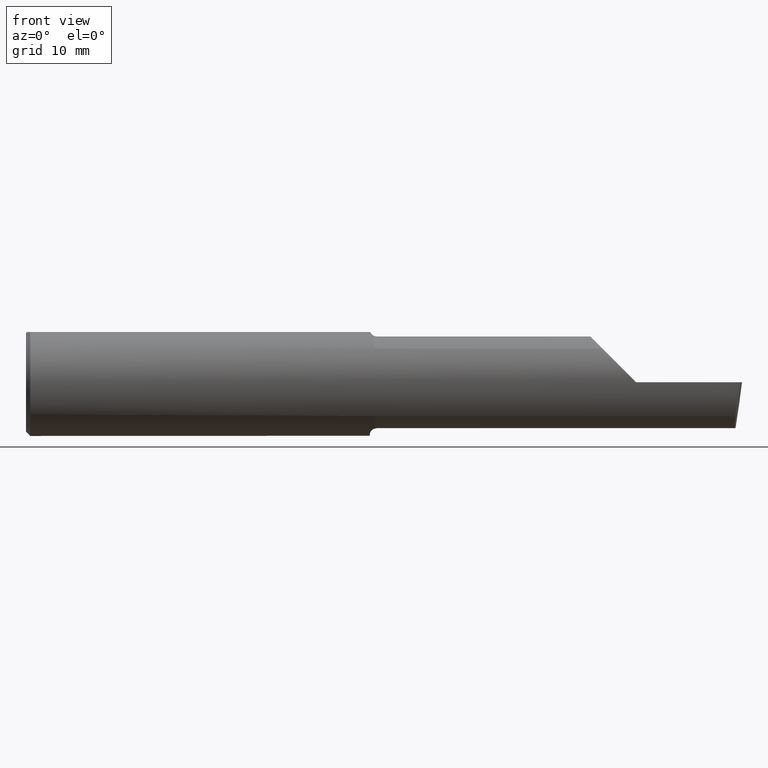
[diagram: clean part render]
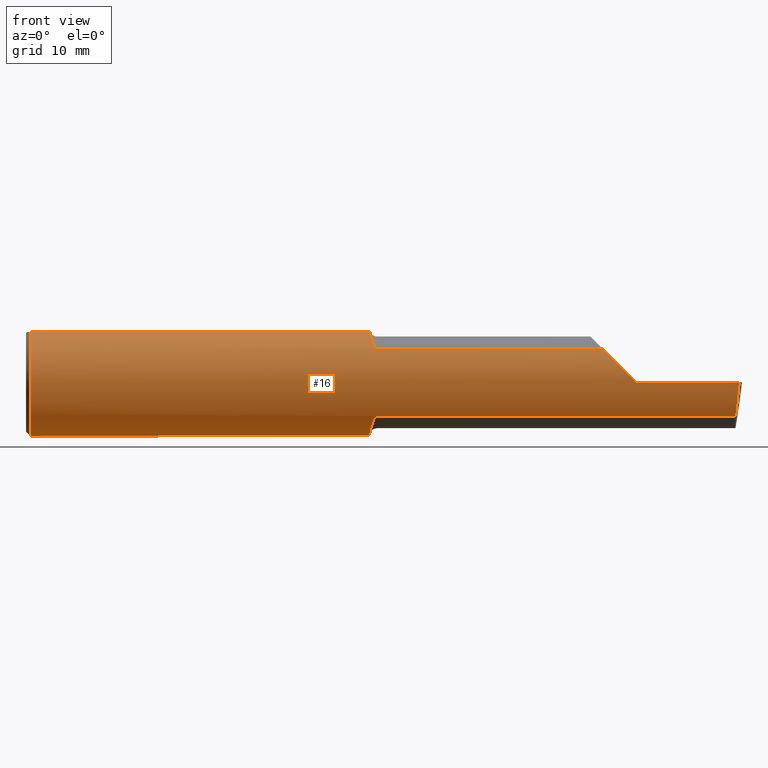
[diagram: same view with one face highlighted and labeled with its STEP entity id]
A machine part, front view. The second image highlights one B-rep face of the part: STEP entity #16.
In plain terms, the highlighted cylindrical surface (partial cylindrical patch) has radius 4.7587 mm, axis along (-1, -0, -0).
Its self-contained STEP definition (entity closure, byte-faithful):
#1 = EDGE_CURVE ( 'NONE', #541, #280, #533, .T. ) ;
#4 = AXIS2_PLACEMENT_3D ( 'NONE', #205, #681, #511 ) ;
#8 = CARTESIAN_POINT ( 'NONE',  ( 0.01499999999999999424, 0.000000000000000000, 0.000000000000000000 ) ) ;
#13 =( BOUNDED_CURVE ( )  B_SPLINE_CURVE ( 3, ( #494, #444, #325, #123 ),
 .UNSPECIFIED., .F., .F. ) 
 B_SPLINE_CURVE_WITH_KNOTS ( ( 4, 4 ),
 ( 0.6791649766279336253, 1.360746882515128764 ),
 .UNSPECIFIED. ) 
 CURVE ( )  GEOMETRIC_REPRESENTATION_ITEM ( )  RATIONAL_B_SPLINE_CURVE ( ( 1.000000000000000000, 0.9616603987079552773, 0.9616603987079552773, 1.000000000000000000 ) ) 
 REPRESENTATION_ITEM ( '' )  );
#16 = ADVANCED_FACE ( 'NONE', ( #374 ), #106, .T. ) ;
#26 = EDGE_CURVE ( 'NONE', #183, #626, #426, .T. ) ;
#32 = LINE ( 'NONE', #461, #99 ) ;
#47 = DIRECTION ( 'NONE',  ( -1.000000000000000000, -0.000000000000000000, -0.000000000000000000 ) ) ;
#54 = CARTESIAN_POINT ( 'NONE',  ( 1.213610562096349099, -0.1338335382286872655, 0.1311728947444862903 ) ) ;
#56 = CARTESIAN_POINT ( 'NONE',  ( 0.01499999999999997863, -0.06597272163553657975, 0.1753499999999999781 ) ) ;
#57 = ORIENTED_EDGE ( 'NONE', *, *, #698, .T. ) ;
#58 = CARTESIAN_POINT ( 'NONE',  ( 2.045676520271626941, -0.1728409665178085863, 0.08432347972837213324 ) ) ;
#60 = VERTEX_POINT ( 'NONE', #119 ) ;
#73 = VERTEX_POINT ( 'NONE', #56 ) ;
#75 = VERTEX_POINT ( 'NONE', #224 ) ;
#80 = VERTEX_POINT ( 'NONE', #283 ) ;
#85 = CARTESIAN_POINT ( 'NONE',  ( 1.225000000000000089, -0.1454917112299475290, 0.1180346748349042629 ) ) ;
#89 = CARTESIAN_POINT ( 'NONE',  ( 1.201116380138691264, -0.06597272163553657975, 0.1753499999999999781 ) ) ;
#92 = ORIENTED_EDGE ( 'NONE', *, *, #649, .F. ) ;
#95 = ORIENTED_EDGE ( 'NONE', *, *, #154, .F. ) ;
#99 = VECTOR ( 'NONE', #409, 39.37007874015748143 ) ;
#102 = CARTESIAN_POINT ( 'NONE',  ( 1.217060058352115837, -0.1401415676386940923, -0.1243666343873851554 ) ) ;
#106 = CYLINDRICAL_SURFACE ( 'NONE', #489, 0.1873499999999999888 ) ;
#109 = CARTESIAN_POINT ( 'NONE',  ( 0.000000000000000000, 0.000000000000000000, 0.000000000000000000 ) ) ;
#119 = CARTESIAN_POINT ( 'NONE',  ( 2.490625440078220176, -0.1873499999999999888, 6.926778495256883227E-17 ) ) ;
#120 = VERTEX_POINT ( 'NONE', #285 ) ;
#123 = CARTESIAN_POINT ( 'NONE',  ( 2.490625440078220176, -0.1873499999999999888, 6.926778495256883227E-17 ) ) ;
#125 = EDGE_LOOP ( 'NONE', ( #549, #468, #57, #562, #342, #92, #331, #334, #95, #442, #655, #232 ) ) ;
#126 = EDGE_CURVE ( 'NONE', #544, #60, #13, .T. ) ;
#151 = CARTESIAN_POINT ( 'NONE',  ( 1.223475335450381118, -0.1454917112299472515, -0.1180346748349045405 ) ) ;
#154 = EDGE_CURVE ( 'NONE', #120, #80, #378, .T. ) ;
#159 = CARTESIAN_POINT ( 'NONE',  ( 1.199999999999999956, -0.03015080213903810827, -0.1849079544810676157 ) ) ;
#160 = CARTESIAN_POINT ( 'NONE',  ( 1.217580983404113137, -0.1407350872998852642, 0.1236837232298108324 ) ) ;
#164 = CARTESIAN_POINT ( 'NONE',  ( 3.377502344341257155E-32, -0.1873499999999999610, 3.267291166268304703E-16 ) ) ;
#183 = VERTEX_POINT ( 'NONE', #662 ) ;
#205 = CARTESIAN_POINT ( 'NONE',  ( 0.01499999999999999424, 0.000000000000000000, 0.000000000000000000 ) ) ;
#207 = DIRECTION ( 'NONE',  ( 1.000000000000000000, -6.829619984160658046E-18, 0.000000000000000000 ) ) ;
#209 = CARTESIAN_POINT ( 'NONE',  ( 1.199999999999999956, -0.04186526254461789970, -0.1829978128711759744 ) ) ;
#214 = CARTESIAN_POINT ( 'NONE',  ( 1.692500000000000115, -0.1454917112299469462, 0.1180346748349048319 ) ) ;
#215 = CARTESIAN_POINT ( 'NONE',  ( 1.218558384071252165, -0.1420205060553831056, 0.1222022583412207680 ) ) ;
#224 = CARTESIAN_POINT ( 'NONE',  ( 2.129999999999999893, -0.1873499999999999888, 1.065442715258197396E-16 ) ) ;
#229 = DIRECTION ( 'NONE',  ( -1.000000000000000000, -0.000000000000000000, -0.000000000000000000 ) ) ;
#232 = ORIENTED_EDGE ( 'NONE', *, *, #26, .F. ) ;
#244 = VECTOR ( 'NONE', #473, 39.37007874015748143 ) ;
#254 = CARTESIAN_POINT ( 'NONE',  ( 1.205627379275792554, -0.1060494212093237437, -0.1548887329701210402 ) ) ;
#256 = LINE ( 'NONE', #690, #469 ) ;
#259 = CARTESIAN_POINT ( 'NONE',  ( 1.222867149423749522, -0.1451640434845494765, 0.1184394021563237587 ) ) ;
#261 = DIRECTION ( 'NONE',  ( -1.000000000000000000, -0.000000000000000000, -0.000000000000000000 ) ) ;
#265 = CARTESIAN_POINT ( 'NONE',  ( 2.011965325165093077, -0.1454917112299461968, 0.1180346748349056646 ) ) ;
#266 = DIRECTION ( 'NONE',  ( 0.000000000000000000, 0.000000000000000000, 1.000000000000000000 ) ) ;
#268 = CARTESIAN_POINT ( 'NONE',  ( 1.220462485058697810, -0.1437494271365429566, 0.1201537477313800728 ) ) ;
#272 = CARTESIAN_POINT ( 'NONE',  ( 1.202180260693407776, -0.08231188685414682349, 0.1692026421515573920 ) ) ;
#280 = VERTEX_POINT ( 'NONE', #265 ) ;
#283 = CARTESIAN_POINT ( 'NONE',  ( 0.01499999999999999424, 0.000000000000000000, -0.1873499999999999888 ) ) ;
#285 = CARTESIAN_POINT ( 'NONE',  ( 0.01499999999999999424, 0.06597272163553663527, 0.1753499999999999781 ) ) ;
#304 = CARTESIAN_POINT ( 'NONE',  ( 1.199999999999999956, -0.03015080213903810827, -0.1849079544810676157 ) ) ;
#308 = CARTESIAN_POINT ( 'NONE',  ( 1.211427394884100117, -0.1284293148232741044, -0.1365241029388003235 ) ) ;
#309 = CARTESIAN_POINT ( 'NONE',  ( 2.477223734188805704, -0.1454917112299469462, -0.1180346748349048319 ) ) ;
#318 = LINE ( 'NONE', #164, #637 ) ;
#319 = EDGE_CURVE ( 'NONE', #75, #280, #641, .T. ) ;
#320 = CARTESIAN_POINT ( 'NONE',  ( 2.086590019116435268, -0.1873500000000000165, 0.04340998088356443074 ) ) ;
#325 = CARTESIAN_POINT ( 'NONE',  ( 2.485293537526796381, -0.1873500000000000443, -0.04340998088356401441 ) ) ;
#331 = ORIENTED_EDGE ( 'NONE', *, *, #643, .T. ) ;
#334 = ORIENTED_EDGE ( 'NONE', *, *, #591, .F. ) ;
#339 = VERTEX_POINT ( 'NONE', #433 ) ;
#342 = ORIENTED_EDGE ( 'NONE', *, *, #1, .F. ) ;
#358 = AXIS2_PLACEMENT_3D ( 'NONE', #574, #415, #628 ) ;
#364 = CARTESIAN_POINT ( 'NONE',  ( 1.201697995486590953, -0.07541755249016975082, -0.1718998534213997120 ) ) ;
#368 = CIRCLE ( 'NONE', #4, 0.1873499999999999888 ) ;
#373 = CARTESIAN_POINT ( 'NONE',  ( 1.210055759795568120, -0.1247930883238201061, 0.1399914093379786284 ) ) ;
#374 = FACE_OUTER_BOUND ( 'NONE', #125, .T. ) ;
#376 = CARTESIAN_POINT ( 'NONE',  ( 1.222144995725004124, -0.1448851833857937588, -0.1187833539262091731 ) ) ;
#378 = CIRCLE ( 'NONE', #676, 0.1873499999999999888 ) ;
#409 = DIRECTION ( 'NONE',  ( -1.000000000000000000, -0.000000000000000000, -0.000000000000000000 ) ) ;
#415 = DIRECTION ( 'NONE',  ( 1.000000000000000000, -6.829619984160658046E-18, 0.000000000000000000 ) ) ;
#417 = DIRECTION ( 'NONE',  ( 1.000000000000000000, 0.000000000000000000, 0.000000000000000000 ) ) ;
#418 = CARTESIAN_POINT ( 'NONE',  ( 1.215943198097122480, -0.1383011673991935420, -0.1264147259943147195 ) ) ;
#422 = VECTOR ( 'NONE', #207, 39.37007874015748143 ) ;
#426 = B_SPLINE_CURVE_WITH_KNOTS ( 'NONE', 3,
 ( #482, #151, #376, #634, #593, #102, #418, #695, #308, #518, #254, #689, #364, #636, #209, #159 ),
 .UNSPECIFIED., .F., .F.,
 ( 4, 2, 2, 2, 2, 2, 2, 4 ),
 ( 1.966851289154467447E-07, 0.0001144729266691544130, 0.0002287491682093933964, 0.0004573016512898654272, 0.0009144066174508130125, 0.001828616549772710568, 0.002742826482094608016, 0.003657036414416505680 ),
 .UNSPECIFIED. ) ;
#427 = CARTESIAN_POINT ( 'NONE',  ( 1.223888626799697565, -0.1454917112299471404, 0.1180346748349046376 ) ) ;
#433 = CARTESIAN_POINT ( 'NONE',  ( 1.199999999999999956, 0.06597272163553663527, 0.1753499999999999781 ) ) ;
#442 = ORIENTED_EDGE ( 'NONE', *, *, #612, .T. ) ;
#444 = CARTESIAN_POINT ( 'NONE',  ( 2.480648201915104600, -0.1728409665178088916, -0.08432347972837143935 ) ) ;
#446 = CIRCLE ( 'NONE', #358, 0.1873499999999999888 ) ;
#461 = CARTESIAN_POINT ( 'NONE',  ( 0.000000000000000000, -0.06597272163553657975, 0.1753499999999999781 ) ) ;
#468 = ORIENTED_EDGE ( 'NONE', *, *, #126, .T. ) ;
#469 = VECTOR ( 'NONE', #417, 39.37007874015748143 ) ;
#473 = DIRECTION ( 'NONE',  ( -1.000000000000000000, 6.829619984160658046E-18, -0.000000000000000000 ) ) ;
#481 = CARTESIAN_POINT ( 'NONE',  ( 2.011965325165093077, -0.1454917112299461968, 0.1180346748349056646 ) ) ;
#482 = CARTESIAN_POINT ( 'NONE',  ( 1.225000000000000089, -0.1454917112299472237, -0.1180346748349045127 ) ) ;
#489 = AXIS2_PLACEMENT_3D ( 'NONE', #109, #261, #266 ) ;
#494 = CARTESIAN_POINT ( 'NONE',  ( 2.477223734188805704, -0.1454917112299469462, -0.1180346748349048319 ) ) ;
#498 = DIRECTION ( 'NONE',  ( 0.000000000000000000, 0.000000000000000000, 1.000000000000000000 ) ) ;
#511 = DIRECTION ( 'NONE',  ( 0.000000000000000000, 0.000000000000000000, 1.000000000000000000 ) ) ;
#518 = CARTESIAN_POINT ( 'NONE',  ( 1.207485333659844340, -0.1155414972264653256, -0.1479248906558520704 ) ) ;
#523 = EDGE_CURVE ( 'NONE', #626, #339, #446, .T. ) ;
#530 = CARTESIAN_POINT ( 'NONE',  ( 1.203931069367344620, -0.09745462642916720430, 0.1609342754328615677 ) ) ;
#533 = LINE ( 'NONE', #214, #422 ) ;
#541 = VERTEX_POINT ( 'NONE', #85 ) ;
#544 = VERTEX_POINT ( 'NONE', #309 ) ;
#549 = ORIENTED_EDGE ( 'NONE', *, *, #683, .F. ) ;
#562 = ORIENTED_EDGE ( 'NONE', *, *, #319, .T. ) ;
#574 = CARTESIAN_POINT ( 'NONE',  ( 1.199999999999999956, 0.000000000000000000, 0.000000000000000000 ) ) ;
#581 = CARTESIAN_POINT ( 'NONE',  ( 1.201116380138691264, -0.06597272163553657975, 0.1753499999999999781 ) ) ;
#583 = CARTESIAN_POINT ( 'NONE',  ( 1.221175406146075115, -0.1442942897112284573, 0.1194974872566935548 ) ) ;
#587 = CARTESIAN_POINT ( 'NONE',  ( 1.208327409769773375, -0.1182546610979339080, 0.1455684145307626631 ) ) ;
#591 = EDGE_CURVE ( 'NONE', #80, #73, #368, .T. ) ;
#593 = CARTESIAN_POINT ( 'NONE',  ( 1.219258671360876178, -0.1426776373316543667, -0.1214281201482010908 ) ) ;
#612 = EDGE_CURVE ( 'NONE', #120, #339, #256, .T. ) ;
#614 = VERTEX_POINT ( 'NONE', #581 ) ;
#626 = VERTEX_POINT ( 'NONE', #304 ) ;
#628 = DIRECTION ( 'NONE',  ( 0.000000000000000000, 1.000000000000000000, 0.000000000000000000 ) ) ;
#634 = CARTESIAN_POINT ( 'NONE',  ( 1.220088327122037519, -0.1434986192849198594, -0.1204547541528178389 ) ) ;
#636 = CARTESIAN_POINT ( 'NONE',  ( 1.200336700870086037, -0.05340758954924541141, -0.1799583179751510220 ) ) ;
#637 = VECTOR ( 'NONE', #47, 39.37007874015748143 ) ;
#639 = CARTESIAN_POINT ( 'NONE',  ( 1.692500000000000115, -0.1454917112299469462, -0.1180346748349048319 ) ) ;
#640 = CARTESIAN_POINT ( 'NONE',  ( 2.129999999999999893, -0.1873499999999999888, 1.065442715258197396E-16 ) ) ;
#641 =( BOUNDED_CURVE ( )  B_SPLINE_CURVE ( 3, ( #640, #320, #58, #481 ),
 .UNSPECIFIED., .F., .T. ) 
 B_SPLINE_CURVE_WITH_KNOTS ( ( 4, 4 ),
 ( 4.712388980384689674, 5.393970886271890031 ),
 .UNSPECIFIED. ) 
 CURVE ( )  GEOMETRIC_REPRESENTATION_ITEM ( )  RATIONAL_B_SPLINE_CURVE ( ( 1.000000000000000000, 0.9616603987079546112, 0.9616603987079546112, 1.000000000000000000 ) ) 
 REPRESENTATION_ITEM ( '' )  );
#643 = EDGE_CURVE ( 'NONE', #614, #73, #32, .T. ) ;
#647 = LINE ( 'NONE', #639, #244 ) ;
#649 = EDGE_CURVE ( 'NONE', #614, #541, #660, .T. ) ;
#654 = CARTESIAN_POINT ( 'NONE',  ( 1.225000000000000089, -0.1454917112299475290, 0.1180346748349042629 ) ) ;
#655 = ORIENTED_EDGE ( 'NONE', *, *, #523, .F. ) ;
#660 = B_SPLINE_CURVE_WITH_KNOTS ( 'NONE', 3,
 ( #89, #272, #530, #587, #373, #54, #700, #160, #215, #268, #583, #259, #427, #654 ),
 .UNSPECIFIED., .F., .F.,
 ( 4, 2, 2, 2, 2, 2, 4 ),
 ( 5.633523616107936189E-07, 0.001319819381107013856, 0.001979447395479715446, 0.002309261402666068410, 0.002474168406259244241, 0.002556621908055830422, 0.002639075409852416169 ),
 .UNSPECIFIED. ) ;
#662 = CARTESIAN_POINT ( 'NONE',  ( 1.225000000000000089, -0.1454917112299472237, -0.1180346748349045127 ) ) ;
#676 = AXIS2_PLACEMENT_3D ( 'NONE', #8, #229, #498 ) ;
#681 = DIRECTION ( 'NONE',  ( -1.000000000000000000, -0.000000000000000000, -0.000000000000000000 ) ) ;
#683 = EDGE_CURVE ( 'NONE', #544, #183, #647, .T. ) ;
#689 = CARTESIAN_POINT ( 'NONE',  ( 1.202713316750944728, -0.08594842947873615469, -0.1668827936309215387 ) ) ;
#690 = CARTESIAN_POINT ( 'NONE',  ( 0.000000000000000000, 0.06597272163553663527, 0.1753499999999999781 ) ) ;
#695 = CARTESIAN_POINT ( 'NONE',  ( 1.212916881138097480, -0.1325294370633285645, -0.1325423110575142394 ) ) ;
#698 = EDGE_CURVE ( 'NONE', #60, #75, #318, .T. ) ;
#700 = CARTESIAN_POINT ( 'NONE',  ( 1.214940665466612391, -0.1367234982206464167, 0.1281512008975642103 ) ) ;